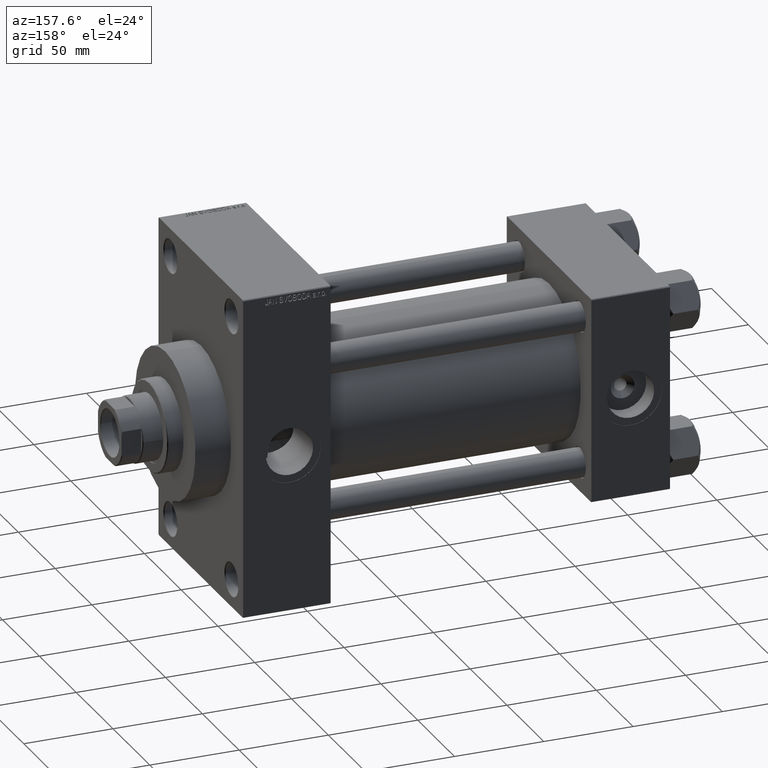
[diagram: clean part render]
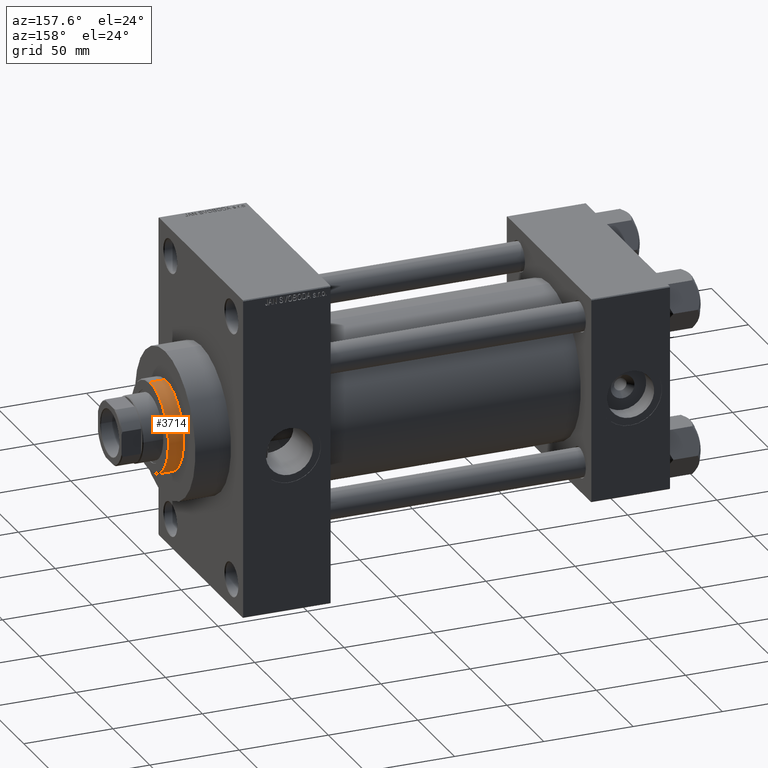
[diagram: same view with one face highlighted and labeled with its STEP entity id]
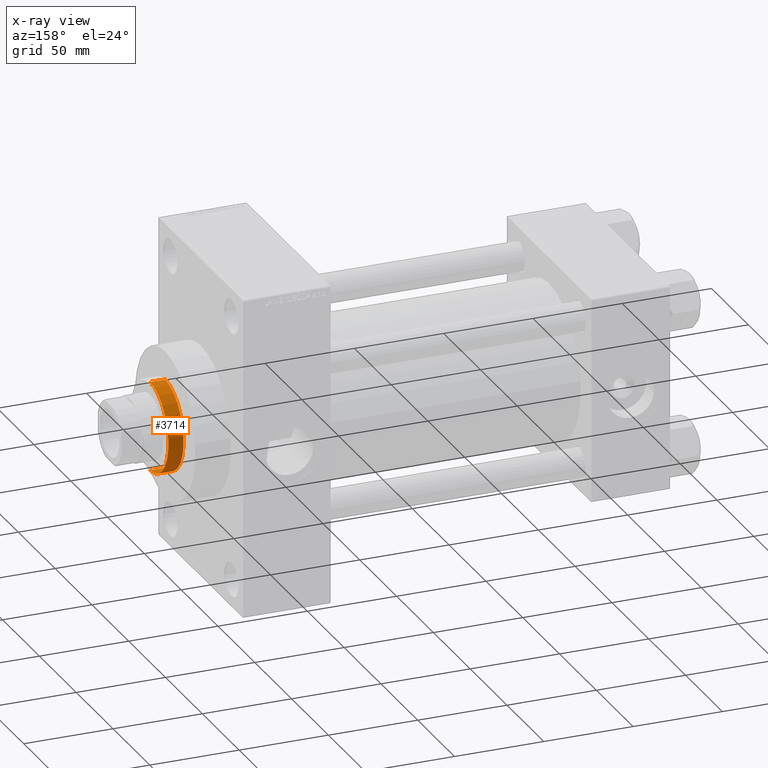
[diagram: x-ray of the same camera — body ghosted, the highlighted face saturated]
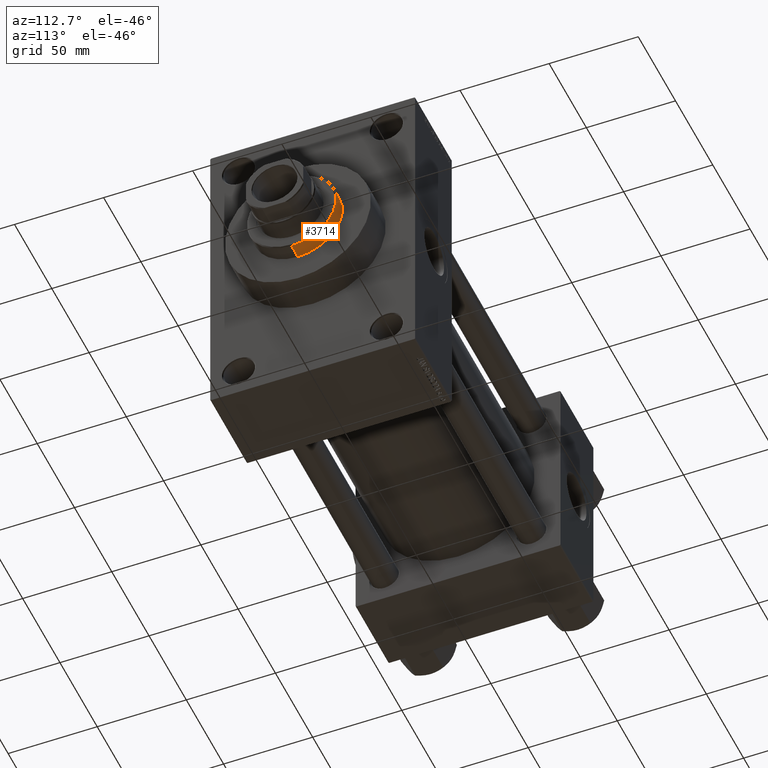
[diagram: same view with one face highlighted and labeled with its STEP entity id]
A machine part, auxiliary view. The second image highlights one B-rep face of the part: STEP entity #3714.
The next image is the same camera in x-ray: the body ghosted, the highlighted face saturated — about 0% of this face is hidden behind the body in this view.
A second angle (auxiliary view) of the same face is appended — the face is thin or edge-on in the first view.
In plain terms, the highlighted cylindrical surface (partial cylindrical patch) has radius 25 mm, axis along (-1, 0, 0).
Its self-contained STEP definition (entity closure, byte-faithful):
#1701 = DIRECTION ( 'NONE',  ( -0.000000000000000000, -0.000000000000000000, -1.000000000000000000 ) ) ;
#3714 = ADVANCED_FACE ( 'NONE', ( #20840 ), #12614, .T. ) ;
#4451 = EDGE_CURVE ( 'NONE', #39147, #26750, #15348, .T. ) ;
#6535 = AXIS2_PLACEMENT_3D ( 'NONE', #46867, #47350, #9101 ) ;
#6559 = ORIENTED_EDGE ( 'NONE', *, *, #48986, .T. ) ;
#7499 = DIRECTION ( 'NONE',  ( 0.000000000000000000, 0.000000000000000000, -1.000000000000000000 ) ) ;
#8339 = ORIENTED_EDGE ( 'NONE', *, *, #22817, .F. ) ;
#9101 = DIRECTION ( 'NONE',  ( -1.000000000000000000, 0.000000000000000000, 0.000000000000000000 ) ) ;
#9877 = CARTESIAN_POINT ( 'NONE',  ( -25.00000000000000000, 0.000000000000000000, 43.25999999999999801 ) ) ;
#10591 = CARTESIAN_POINT ( 'NONE',  ( 25.00000000000000000, 3.061616997868383043E-15, 51.75999999999996959 ) ) ;
#11502 = CARTESIAN_POINT ( 'NONE',  ( 25.00000000000000000, 3.061616997868383043E-15, 52.25999999999999801 ) ) ;
#12243 = DIRECTION ( 'NONE',  ( -0.000000000000000000, -0.000000000000000000, -1.000000000000000000 ) ) ;
#12614 = CYLINDRICAL_SURFACE ( 'NONE', #6535, 25.00000000000000000 ) ;
#13820 = ORIENTED_EDGE ( 'NONE', *, *, #4451, .T. ) ;
#15348 = CIRCLE ( 'NONE', #33710, 25.00000000000000000 ) ;
#16157 = VERTEX_POINT ( 'NONE', #37251 ) ;
#20840 = FACE_OUTER_BOUND ( 'NONE', #32348, .T. ) ;
#22817 = EDGE_CURVE ( 'NONE', #33332, #26750, #34262, .T. ) ;
#24835 = VECTOR ( 'NONE', #1701, 1000.000000000000000 ) ;
#26750 = VERTEX_POINT ( 'NONE', #31139 ) ;
#26886 = DIRECTION ( 'NONE',  ( 0.000000000000000000, 0.000000000000000000, 1.000000000000000000 ) ) ;
#29929 = ORIENTED_EDGE ( 'NONE', *, *, #30128, .T. ) ;
#30128 = EDGE_CURVE ( 'NONE', #16157, #39147, #47940, .T. ) ;
#31139 = CARTESIAN_POINT ( 'NONE',  ( 25.00000000000000000, 3.061616997868383043E-15, 43.25999999999999801 ) ) ;
#31145 = DIRECTION ( 'NONE',  ( 1.000000000000000000, 0.000000000000000000, 0.000000000000000000 ) ) ;
#32348 = EDGE_LOOP ( 'NONE', ( #8339, #6559, #29929, #13820 ) ) ;
#33332 = VERTEX_POINT ( 'NONE', #10591 ) ;
#33710 = AXIS2_PLACEMENT_3D ( 'NONE', #38634, #26886, #31145 ) ;
#33769 = CARTESIAN_POINT ( 'NONE',  ( 0.000000000000000000, 0.000000000000000000, 51.75999999999996959 ) ) ;
#34262 = LINE ( 'NONE', #11502, #48556 ) ;
#37251 = CARTESIAN_POINT ( 'NONE',  ( -25.00000000000000000, 0.000000000000000000, 51.75999999999996959 ) ) ;
#38634 = CARTESIAN_POINT ( 'NONE',  ( 0.000000000000000000, 0.000000000000000000, 43.25999999999999801 ) ) ;
#39147 = VERTEX_POINT ( 'NONE', #9877 ) ;
#40194 = CARTESIAN_POINT ( 'NONE',  ( -25.00000000000000000, 0.000000000000000000, 52.25999999999999801 ) ) ;
#42131 = CIRCLE ( 'NONE', #48520, 25.00000000000000000 ) ;
#46867 = CARTESIAN_POINT ( 'NONE',  ( 0.000000000000000000, 0.000000000000000000, 52.25999999999999801 ) ) ;
#47350 = DIRECTION ( 'NONE',  ( -0.000000000000000000, -0.000000000000000000, -1.000000000000000000 ) ) ;
#47940 = LINE ( 'NONE', #40194, #24835 ) ;
#48520 = AXIS2_PLACEMENT_3D ( 'NONE', #33769, #7499, #49012 ) ;
#48556 = VECTOR ( 'NONE', #12243, 1000.000000000000000 ) ;
#48986 = EDGE_CURVE ( 'NONE', #33332, #16157, #42131, .T. ) ;
#49012 = DIRECTION ( 'NONE',  ( 1.000000000000000000, 0.000000000000000000, 0.000000000000000000 ) ) ;